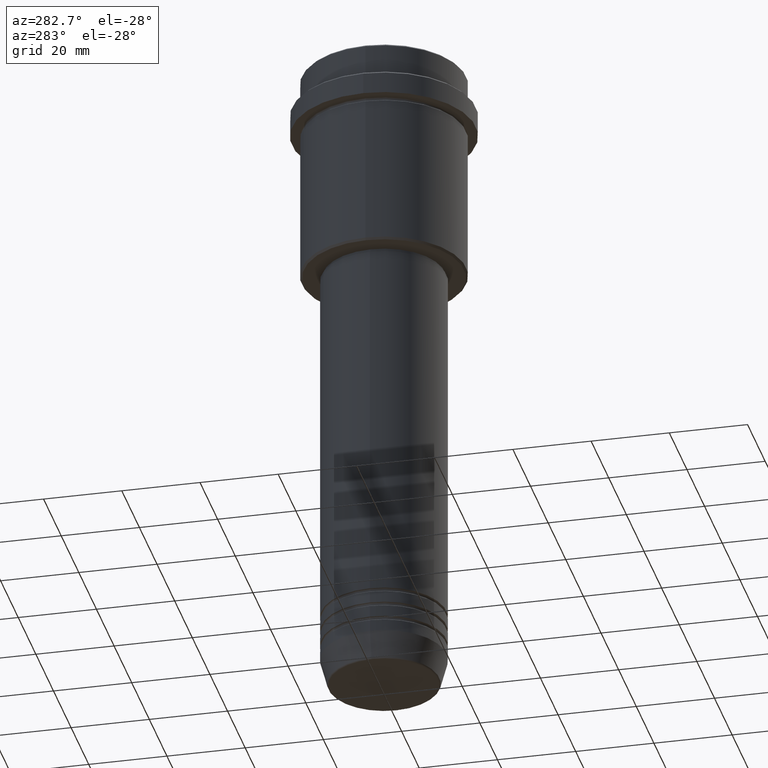
[diagram: clean part render]
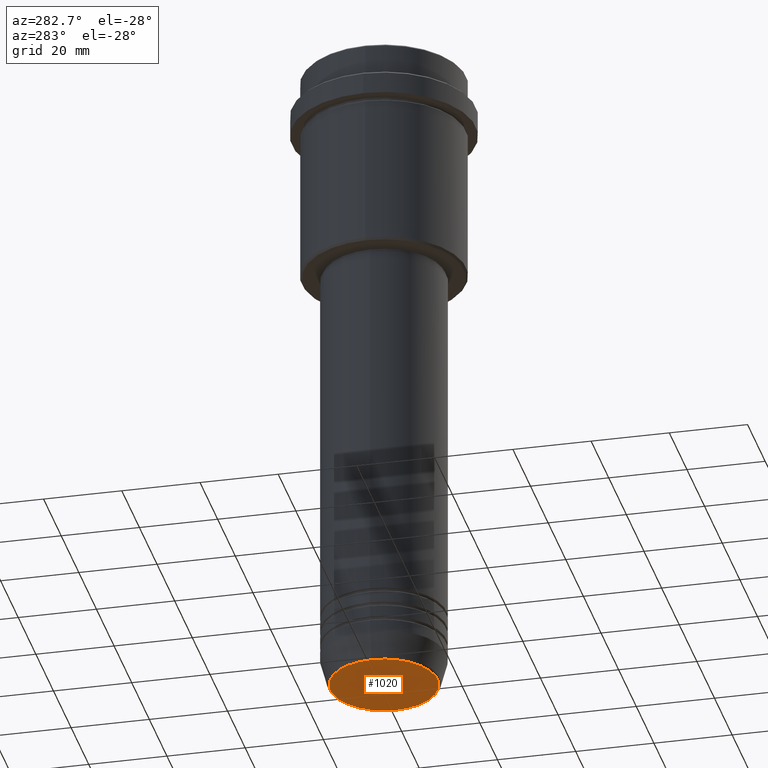
[diagram: same view with one face highlighted and labeled with its STEP entity id]
A machine part, auxiliary view. The second image highlights one B-rep face of the part: STEP entity #1020.
In plain terms, the highlighted planar face has unit normal (0, -0, 1).
Its self-contained STEP definition (entity closure, byte-faithful):
#81 = CARTESIAN_POINT ( 'NONE',  ( 0.000000000000000000, 0.000000000000000000, -169.9999999999999716 ) ) ;
#165 = ORIENTED_EDGE ( 'NONE', *, *, #258, .T. ) ;
#169 = CARTESIAN_POINT ( 'NONE',  ( -13.74069215899265828, 1.712322416342415986E-15, -169.9999999999999716 ) ) ;
#238 = AXIS2_PLACEMENT_3D ( 'NONE', #81, #1183, #640 ) ;
#258 = EDGE_CURVE ( 'NONE', #332, #1031, #310, .T. ) ;
#310 = CIRCLE ( 'NONE', #1248, 13.74069215899265828 ) ;
#332 = VERTEX_POINT ( 'NONE', #169 ) ;
#367 = ORIENTED_EDGE ( 'NONE', *, *, #1368, .T. ) ;
#411 = CARTESIAN_POINT ( 'NONE',  ( 0.000000000000000000, 0.000000000000000000, -169.9999999999999716 ) ) ;
#509 = CARTESIAN_POINT ( 'NONE',  ( 0.000000000000000000, 0.000000000000000000, -169.9999999999999716 ) ) ;
#526 = CARTESIAN_POINT ( 'NONE',  ( 13.74069215899265828, 0.000000000000000000, -169.9999999999999716 ) ) ;
#631 = FACE_OUTER_BOUND ( 'NONE', #1002, .T. ) ;
#633 = DIRECTION ( 'NONE',  ( 1.000000000000000000, 0.000000000000000000, 0.000000000000000000 ) ) ;
#640 = DIRECTION ( 'NONE',  ( 1.000000000000000000, 0.000000000000000000, 0.000000000000000000 ) ) ;
#721 = DIRECTION ( 'NONE',  ( 0.000000000000000000, 0.000000000000000000, -1.000000000000000000 ) ) ;
#971 = PLANE ( 'NONE',  #238 ) ;
#1002 = EDGE_LOOP ( 'NONE', ( #367, #165 ) ) ;
#1020 = ADVANCED_FACE ( 'NONE', ( #631 ), #971, .F. ) ;
#1031 = VERTEX_POINT ( 'NONE', #526 ) ;
#1155 = DIRECTION ( 'NONE',  ( 1.000000000000000000, 0.000000000000000000, 0.000000000000000000 ) ) ;
#1183 = DIRECTION ( 'NONE',  ( 0.000000000000000000, -0.000000000000000000, 1.000000000000000000 ) ) ;
#1248 = AXIS2_PLACEMENT_3D ( 'NONE', #509, #1282, #633 ) ;
#1282 = DIRECTION ( 'NONE',  ( 0.000000000000000000, 0.000000000000000000, -1.000000000000000000 ) ) ;
#1287 = CIRCLE ( 'NONE', #1382, 13.74069215899265828 ) ;
#1368 = EDGE_CURVE ( 'NONE', #1031, #332, #1287, .T. ) ;
#1382 = AXIS2_PLACEMENT_3D ( 'NONE', #411, #721, #1155 ) ;